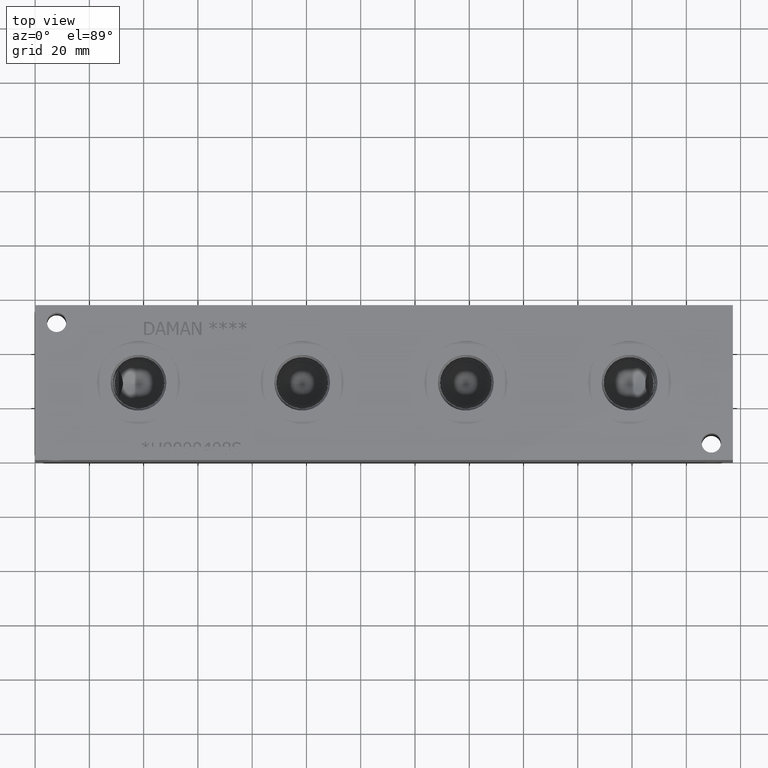
[diagram: clean part render]
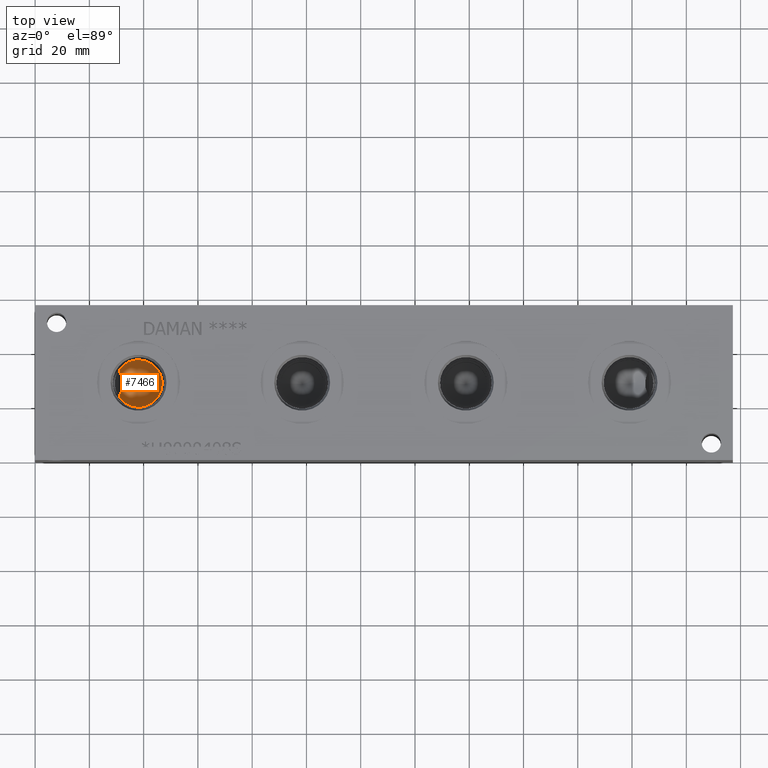
[diagram: same view with one face highlighted and labeled with its STEP entity id]
A machine part, top view. The second image highlights one B-rep face of the part: STEP entity #7466.
In plain terms, the highlighted conical surface has half-angle 66 deg.
Its self-contained STEP definition (entity closure, byte-faithful):
#31=CONICAL_SURFACE('',#7870,4.37515,1.15191730631626);
#127=CIRCLE('',#7782,8.7503);
#839=FACE_OUTER_BOUND('',#1265,.T.);
#1265=EDGE_LOOP('',(#6600,#6601,#6602,#6603,#6604));
#1971=LINE('',#12853,#2663);
#2663=VECTOR('',#9324,4.37515);
#2895=B_SPLINE_CURVE_WITH_KNOTS('',3,(#12653,#12654,#12655,#12656,#12657,
#12658,#12659,#12660),.UNSPECIFIED.,.F.,.F.,(4,2,2,4),(2.73322635556047,
2.904053002783,3.07487965000553,3.33210412501552),.UNSPECIFIED.);
#2896=B_SPLINE_CURVE_WITH_KNOTS('',3,(#12662,#12663,#12664,#12665,#12666,
#12667,#12668,#12669),.UNSPECIFIED.,.F.,.F.,(4,2,2,4),(2.13434858610542,
2.39157306111541,2.56239970833794,2.73322635556047),.UNSPECIFIED.);
#3509=VERTEX_POINT('',#12647);
#3510=VERTEX_POINT('',#12652);
#3511=VERTEX_POINT('',#12661);
#3571=VERTEX_POINT('',#12852);
#4507=EDGE_CURVE('',#3510,#3509,#2895,.T.);
#4508=EDGE_CURVE('',#3511,#3510,#2896,.T.);
#4513=EDGE_CURVE('',#3509,#3511,#127,.T.);
#4595=EDGE_CURVE('',#3510,#3571,#1971,.T.);
#6600=ORIENTED_EDGE('',*,*,#4508,.T.);
#6601=ORIENTED_EDGE('',*,*,#4595,.T.);
#6602=ORIENTED_EDGE('',*,*,#4595,.F.);
#6603=ORIENTED_EDGE('',*,*,#4507,.T.);
#6604=ORIENTED_EDGE('',*,*,#4513,.T.);
#7466=ADVANCED_FACE('',(#839),#31,.F.);
#7782=AXIS2_PLACEMENT_3D('',#12680,#9120,#9121);
#7870=AXIS2_PLACEMENT_3D('',#12851,#9322,#9323);
#9120=DIRECTION('center_axis',(0.,0.,1.));
#9121=DIRECTION('ref_axis',(1.,0.,0.));
#9322=DIRECTION('center_axis',(0.,0.,1.));
#9323=DIRECTION('ref_axis',(1.,0.,0.));
#9324=DIRECTION('',(0.913545457642601,1.11877052057761E-16,-0.4067366430758));
#12647=CARTESIAN_POINT('',(30.9098119454858,23.5881226372888,38.862));
#12652=CARTESIAN_POINT('',(32.3394087587043,28.575,37.5308958999067));
#12653=CARTESIAN_POINT('Ctrl Pts',(32.3394087587043,28.575,37.5308958999067));
#12654=CARTESIAN_POINT('Ctrl Pts',(32.3394087587043,28.0055778425916,37.5308958999067));
#12655=CARTESIAN_POINT('Ctrl Pts',(32.2691115625042,27.48821475903,37.5994004934281));
#12656=CARTESIAN_POINT('Ctrl Pts',(32.0569416216819,26.5073641476039,37.8028228388642));
#12657=CARTESIAN_POINT('Ctrl Pts',(31.9150134848522,26.0438639626108,37.9376217658257));
#12658=CARTESIAN_POINT('Ctrl Pts',(31.5098111494893,24.9066409014689,38.3163706308247));
#12659=CARTESIAN_POINT('Ctrl Pts',(31.2222727695641,24.2477234015148,38.5803198184239));
#12660=CARTESIAN_POINT('Ctrl Pts',(30.9098119454858,23.5881226372888,38.862));
#12661=CARTESIAN_POINT('',(30.9098119454858,33.5618773627112,38.862));
#12662=CARTESIAN_POINT('Ctrl Pts',(30.9098119454858,33.5618773627112,38.862));
#12663=CARTESIAN_POINT('Ctrl Pts',(31.2222727695641,32.9022765984852,38.5803198184239));
#12664=CARTESIAN_POINT('Ctrl Pts',(31.5098111494893,32.2433590985311,38.3163706308247));
#12665=CARTESIAN_POINT('Ctrl Pts',(31.9150134848522,31.1061360373892,37.9376217658257));
#12666=CARTESIAN_POINT('Ctrl Pts',(32.0569416216819,30.6426358523961,37.8028228388642));
#12667=CARTESIAN_POINT('Ctrl Pts',(32.2691115625042,29.66178524097,37.5994004934281));
#12668=CARTESIAN_POINT('Ctrl Pts',(32.3394087587043,29.1444221574084,37.5308958999067));
#12669=CARTESIAN_POINT('Ctrl Pts',(32.3394087587043,28.575,37.5308958999067));
#12680=CARTESIAN_POINT('Origin',(38.1,28.575,38.862));
#12851=CARTESIAN_POINT('Origin',(38.1,28.575,36.9140577174724));
#12852=CARTESIAN_POINT('',(38.1,28.575,34.9661154349447));
#12853=CARTESIAN_POINT('',(33.72485,28.575,36.9140577174724));